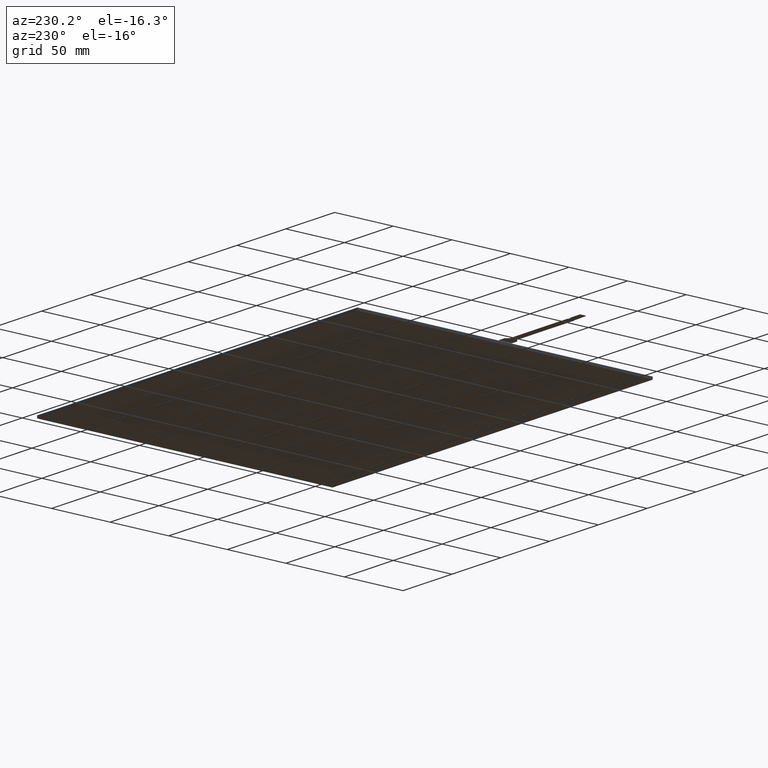
[diagram: clean part render]
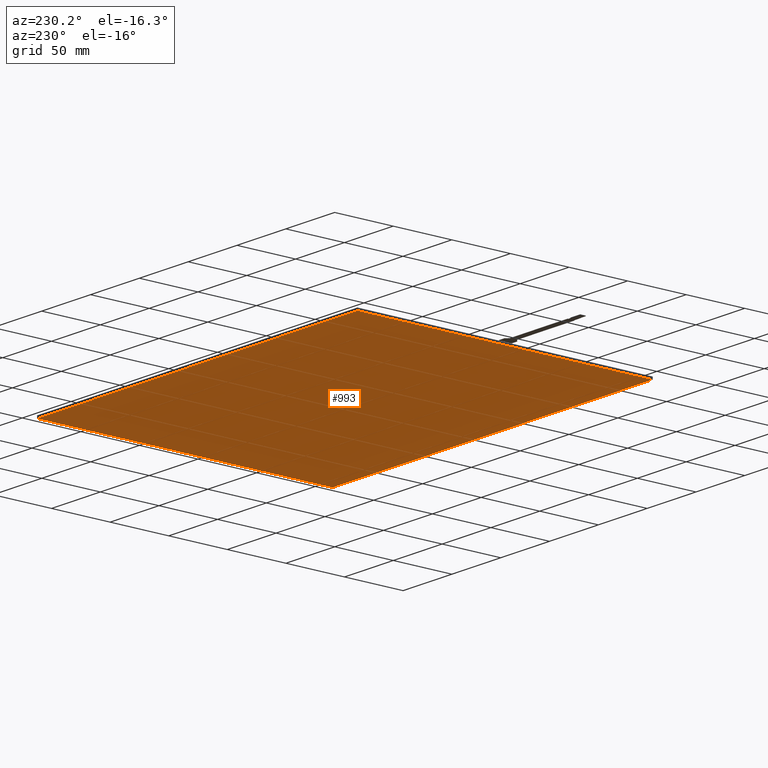
[diagram: same view with one face highlighted and labeled with its STEP entity id]
A machine part, auxiliary view. The second image highlights one B-rep face of the part: STEP entity #993.
In plain terms, the highlighted planar face has unit normal (0, 0, -1).
Its self-contained STEP definition (entity closure, byte-faithful):
#83=FACE_OUTER_BOUND('',#137,.T.);
#137=EDGE_LOOP('',(#724,#725,#726,#727));
#203=LINE('',#1434,#329);
#205=LINE('',#1438,#331);
#207=LINE('',#1442,#333);
#209=LINE('',#1445,#335);
#329=VECTOR('',#1168,10.);
#331=VECTOR('',#1172,10.);
#333=VECTOR('',#1176,10.);
#335=VECTOR('',#1180,10.);
#446=VERTEX_POINT('',#1431);
#447=VERTEX_POINT('',#1433);
#448=VERTEX_POINT('',#1437);
#449=VERTEX_POINT('',#1441);
#547=EDGE_CURVE('',#447,#446,#203,.T.);
#549=EDGE_CURVE('',#448,#447,#205,.T.);
#551=EDGE_CURVE('',#449,#448,#207,.T.);
#553=EDGE_CURVE('',#446,#449,#209,.T.);
#724=ORIENTED_EDGE('',*,*,#553,.T.);
#725=ORIENTED_EDGE('',*,*,#551,.T.);
#726=ORIENTED_EDGE('',*,*,#549,.T.);
#727=ORIENTED_EDGE('',*,*,#547,.T.);
#947=PLANE('',#1066);
#993=ADVANCED_FACE('',(#83),#947,.T.);
#1066=AXIS2_PLACEMENT_3D('',#1447,#1183,#1184);
#1168=DIRECTION('',(-4.22942104619107E-16,1.,0.));
#1172=DIRECTION('',(-1.,-5.41572207134223E-17,0.));
#1176=DIRECTION('',(0.,-1.,0.));
#1180=DIRECTION('',(1.,0.,0.));
#1183=DIRECTION('center_axis',(0.,0.,-1.));
#1184=DIRECTION('ref_axis',(-1.,0.,0.));
#1431=CARTESIAN_POINT('',(-164.505,126.,-2.1));
#1433=CARTESIAN_POINT('',(-164.505,-126.,-2.1));
#1434=CARTESIAN_POINT('',(-164.505,126.,-2.1));
#1437=CARTESIAN_POINT('',(163.495,-126.,-2.1));
#1438=CARTESIAN_POINT('',(-164.505,-126.,-2.1));
#1441=CARTESIAN_POINT('',(163.495,126.,-2.1));
#1442=CARTESIAN_POINT('',(163.495,-126.,-2.1));
#1445=CARTESIAN_POINT('',(163.495,126.,-2.1));
#1447=CARTESIAN_POINT('Origin',(-0.504999999999995,0.,-2.1));